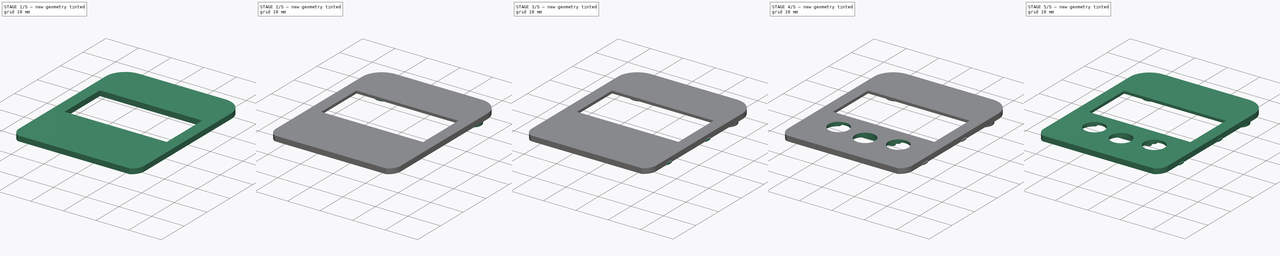
[diagram: build sequence overview — one tinted view per stage of 5, left to right]
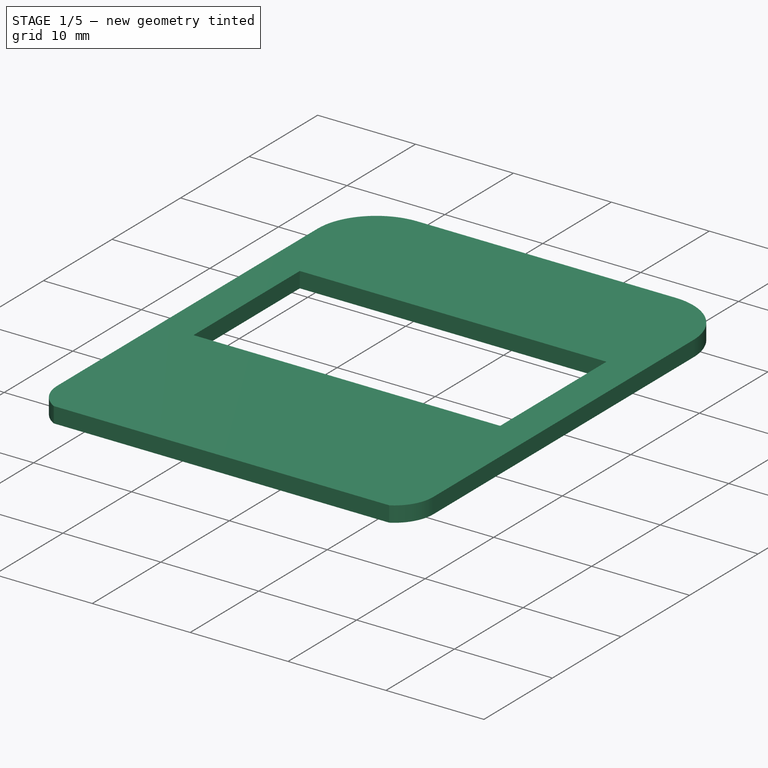
[diagram: stage 1 of 5 — iso view after this stage's code; geometry added in this stage tinted green]
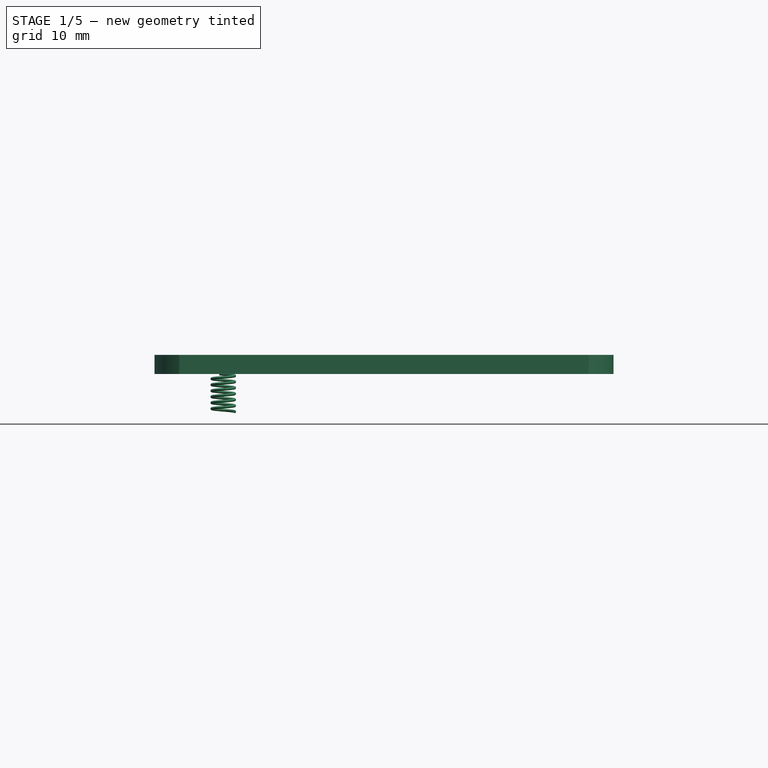
[diagram: stage 1 of 5 — front view after this stage's code; geometry added in this stage tinted green]
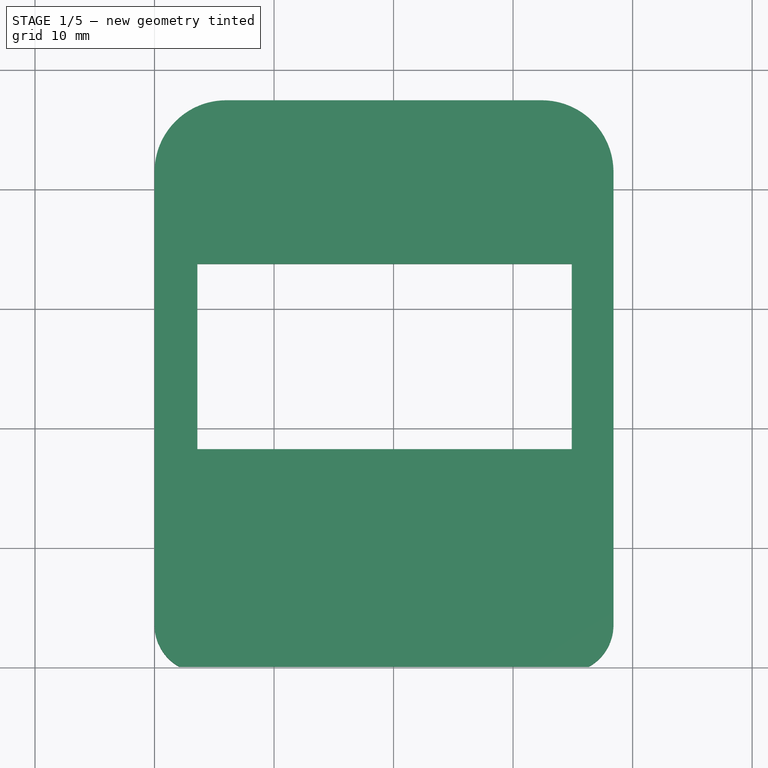
[diagram: stage 1 of 5 — top view after this stage's code; geometry added in this stage tinted green]
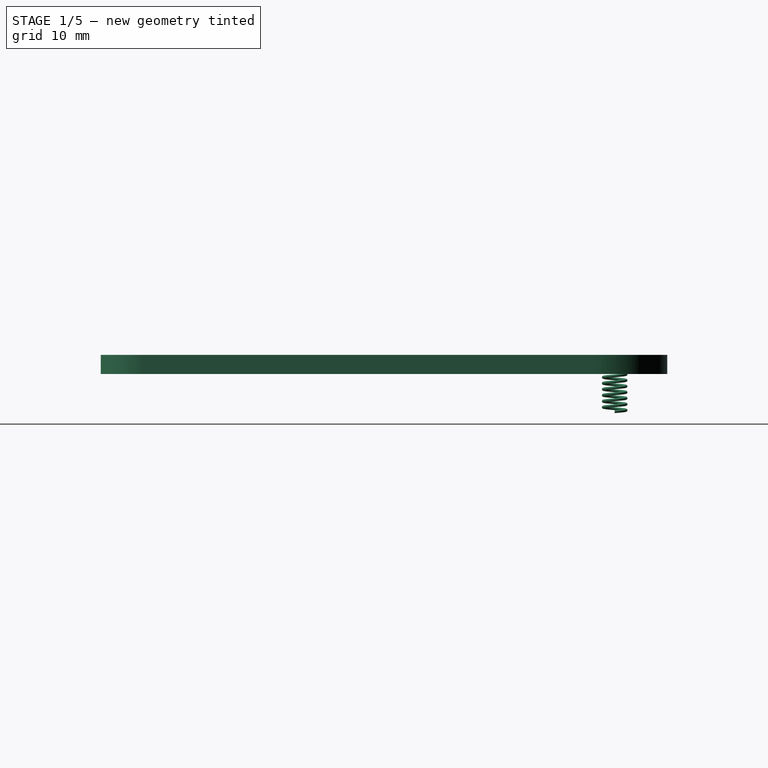
[diagram: stage 1 of 5 — right view after this stage's code; geometry added in this stage tinted green]
FCSTD DOCUMENT  (FreeCAD 0.18R0.18.4)
Label: Top_case
Comment: CERN Open Hardware Licence Version 2 - Weakly Reciprocal
License: Other
LicenseURL: https://ohwr.org/cern_ohl_w_v2.pdf
objects: Sketcher::SketchObject×9, PartDesign::Pad×5, PartDesign::Pocket×4, PartDesign::Fillet×2, Part::Helix×2, Part::Circle×2, Part::Sweep×2, Part::Cut×2, PartDesign::Body×1
note: 38 computed .brp shape members not serialized (recipe doc carries the construction recipe); baked Part::Feature solids carry a one-line shape summary decoded from their .brp

FEATURE [Sketcher::SketchObject] Sketch
  MapMode = 5
  Support = -> [XY_Plane]
  sketch-geometry (8):
    g0: LineSegment StartX=38.3998 StartY=3.50065 StartZ=0 EndX=38.3998 EndY=41.4 EndZ=0
    g1: LineSegment StartX=32.3998 StartY=47.4 StartZ=0 EndX=5.99984 EndY=47.4 EndZ=0
    g2: LineSegment StartX=-0.000157822 StartY=41.4 StartZ=0 EndX=-0.000157822 EndY=3.501 EndZ=0
    g3: ArcOfCircle CenterX=5.99984 CenterY=41.4 CenterZ=0 NormalX=0 NormalY=0 NormalZ=1 AngleXU=0 Radius=6 StartAngle=1.5708 EndAngle=3.14159
    g4: ArcOfCircle CenterX=32.3998 CenterY=41.4 CenterZ=0 NormalX=0 NormalY=0 NormalZ=1 AngleXU=0 Radius=6 StartAngle=4e-16 EndAngle=1.5708
    g5: ArcOfCircle CenterX=34.3998 CenterY=3.50065 CenterZ=0 NormalX=0 NormalY=0 NormalZ=1 AngleXU=0 Radius=4 StartAngle=5.21741 EndAngle=6.28319
    g6: ArcOfCircle CenterX=3.99984 CenterY=3.501 CenterZ=0 NormalX=0 NormalY=0 NormalZ=1 AngleXU=0 Radius=4 StartAngle=3.14159 EndAngle=4.20755
    g7: LineSegment StartX=2.06516 StartY=0 StartZ=0 EndX=36.3352 EndY=0 EndZ=0
  constraints (22):
    c: Horizontal(g1)
    c: Vertical(g0)
    c: Vertical(g2)
    c: Tangent(g2,g3) = -1.5708
    c: Tangent(g1,g3) = -1.5708
    c: Tangent(g1,g4) = -1.5708
    c: Tangent(g0,g4) = -1.5708
    c: Tangent(g0,g5) = -1.5708
    c: Tangent(g2,g6) = -1.5708
    c: DistanceX(g2,g0) = 38.4
    c: Radius(g6) = 4
    c: Radius(g5) = 4
    c: Radius(g3) = 6
    c: Radius(g4) = 6
    c: Horizontal(g7)
    c: Coincident(g7,g6)
    c: Coincident(g7,g5)
    c: DistanceY(g6,g1) = 47.4
    c: Distance(g7) = 34.27
    c: Distance(g2) = 37.899
    c: DistanceX(g6) = 2.06516
    c: DistanceY(g6) = 0
FEATURE [PartDesign::Pad] Pad
  Length = 1.6
  Length2 = 100
  Profile = -> Sketch
  Type = 0
FEATURE [Sketcher::SketchObject] Sketch001
  ExternalGeometry = -> [Pad]
  MapMode = 5
  Placement = pos=(0,0,1.6) rot=(0,0,1;0rad)
  Support = -> [Pad]
  sketch-geometry (4):
    g0: LineSegment StartX=3.58984 StartY=33.71 StartZ=0 EndX=34.9098 EndY=33.71 EndZ=0
    g1: LineSegment StartX=34.9098 StartY=33.71 StartZ=0 EndX=34.9098 EndY=18.21 EndZ=0
    g2: LineSegment StartX=34.9098 StartY=18.21 StartZ=0 EndX=3.58984 EndY=18.21 EndZ=0
    g3: LineSegment StartX=3.58984 StartY=18.21 StartZ=0 EndX=3.58984 EndY=33.71 EndZ=0
  constraints (12):
    c: Coincident(g0,g1)
    c: Coincident(g1,g2)
    c: Coincident(g2,g3)
    c: Coincident(g3,g0)
    c: Horizontal(g0)
    c: Horizontal(g2)
    c: Vertical(g1)
    c: Vertical(g3)
    c: DistanceX(g0,g0) = 31.32
    c: DistanceY(g3,g3) = 15.5
    c: DistanceY(g0,g-3) = 13.69
    c: DistanceX(g-4,g0) = 3.59
FEATURE [PartDesign::Pocket] Pocket
  BaseFeature = -> Pad
  Length = 5
  Length2 = 100
  Profile = -> Sketch001
  Type = 1
FEATURE [PartDesign::Body] Body
  Group = -> [Sketch,Pad,Sketch001,Pocket,Sketch002,Pocket001,Sketch003,Pad001,Sketch004,Pad002,Fillet,Sketch005,Pad003,Fillet001,Sketch006,Pocket002,Sketch007,Pocket003,Sketch008,Pad004]
  Origin = -> Origin
  Tip = -> Pad004
FEATURE [Part::Helix] Helix  label="Спираль"
  Angle = 0
  AttacherType = Attacher::AttachEngine3D
  Height = 3.15
  LocalCoord = 0
  Pitch = 0.5
  Placement = pos=(5.75,43,-3.15) rot=(0,0,1;0rad)
  Radius = 0.95
  Style = 1
FEATURE [Part::Helix] Helix001  label="Спираль001"
  Angle = 0
  AttacherType = Attacher::AttachEngine3D
  Height = 3.15
  LocalCoord = 0
  Pitch = 0.5
  Placement = pos=(32.65,43,-3.15) rot=(0,0,1;0rad)
  Radius = 0.95
  Style = 1
FEATURE [Part::Circle] Circle  label="Окружность"
  Angle0 = 0
  Angle1 = 360
  AttacherType = Attacher::AttachEngine3D
  Placement = pos=(6.7,43,-3.15) rot=(1,0,0;1.5708rad)
  Radius = 0.12
FEATURE [Part::Circle] Circle001  label="Окружность001"
  Angle0 = 0
  Angle1 = 360
  AttacherType = Attacher::AttachEngine3D
  Placement = pos=(33.6,43,-3.15) rot=(1,0,0;1.5708rad)
  Radius = 0.12
FEATURE [Part::Sweep] Sweep
  Frenet = false
  Sections = -> [Circle]
  Solid = true
  Spine = -> Helix
  Transition = 1
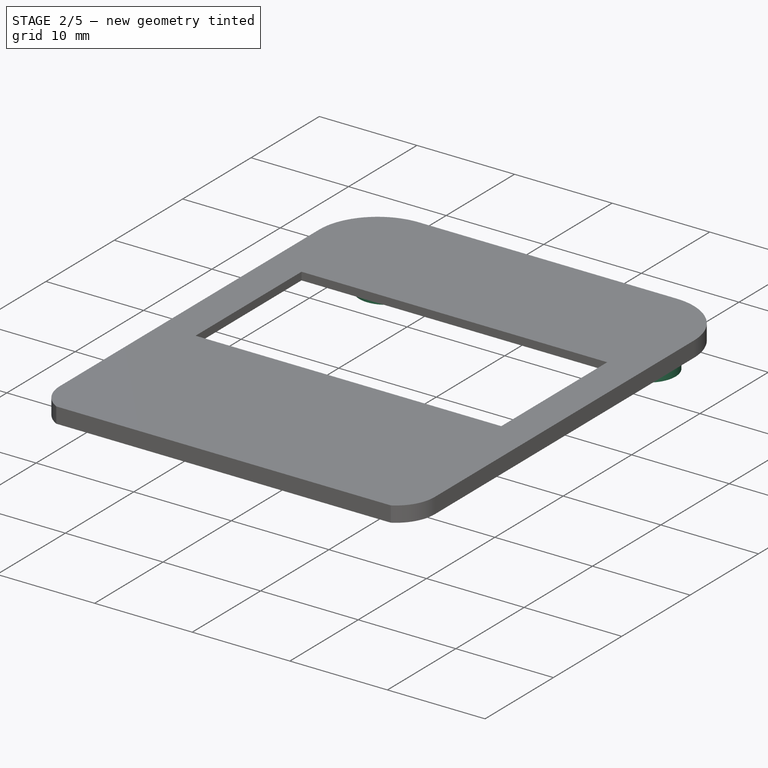
[diagram: stage 2 of 5 — iso view after this stage's code; geometry added in this stage tinted green]
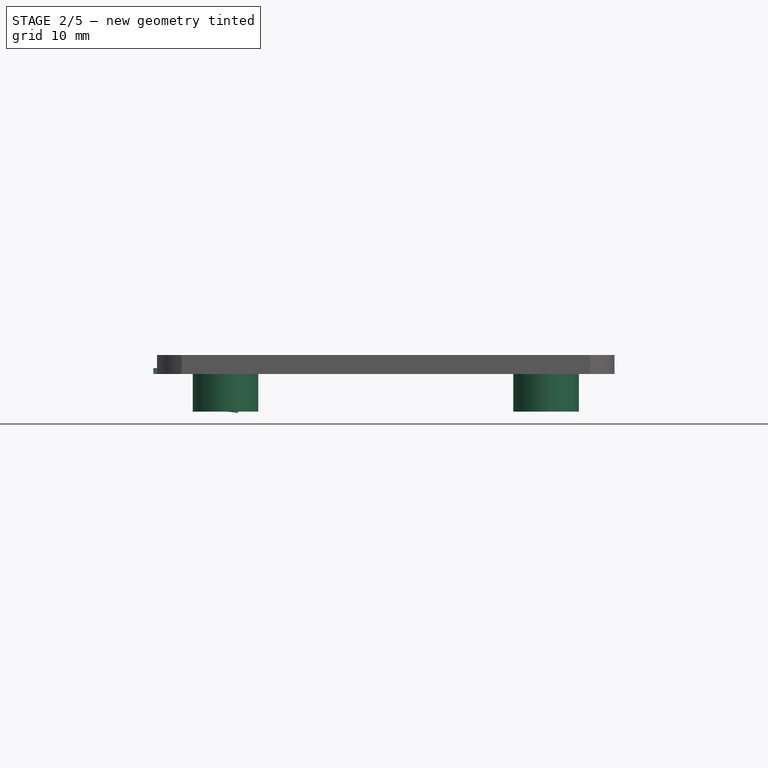
[diagram: stage 2 of 5 — front view after this stage's code; geometry added in this stage tinted green]
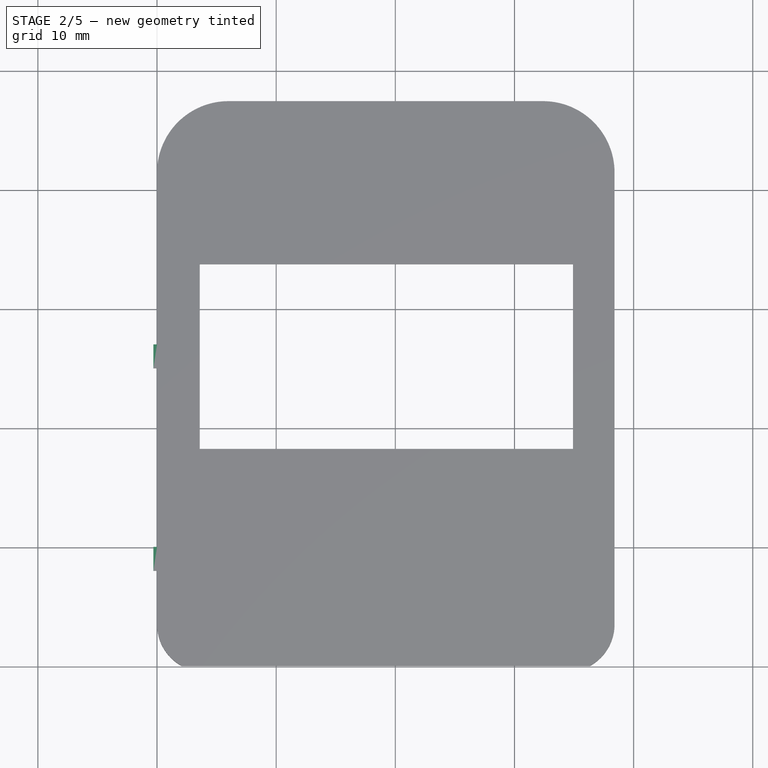
[diagram: stage 2 of 5 — top view after this stage's code; geometry added in this stage tinted green]
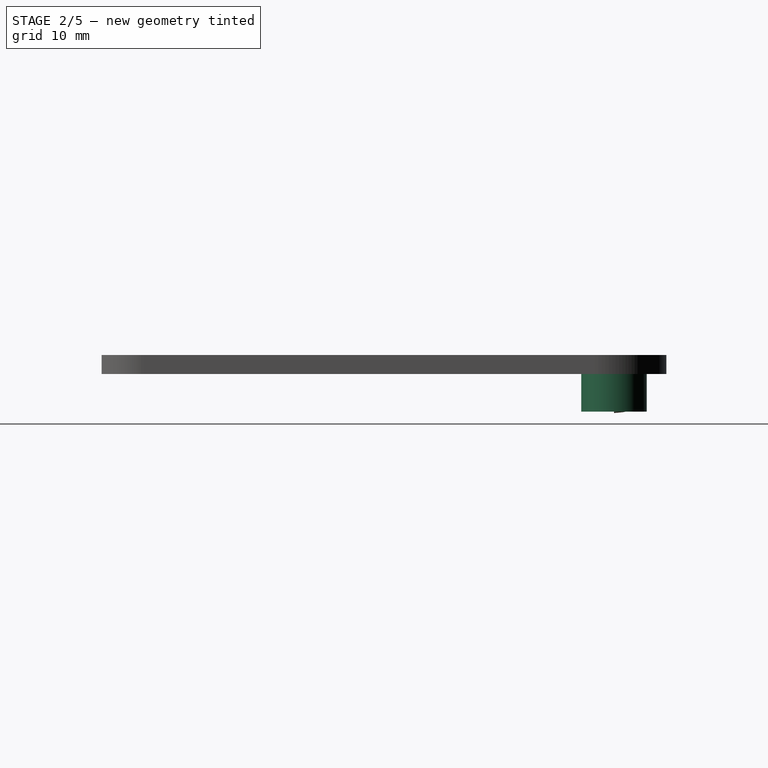
[diagram: stage 2 of 5 — right view after this stage's code; geometry added in this stage tinted green]
FEATURE [Sketcher::SketchObject] Sketch002
  ExternalGeometry = -> [Pocket]
  MapMode = 5
  Placement = pos=(0,0,0) rot=(1,0,0;3.14159rad)
  Support = -> [Pocket]
  sketch-geometry (4):
    g0: LineSegment StartX=36.6998 StartY=-39.95 StartZ=0 EndX=1.69984 EndY=-39.95 EndZ=0
    g1: LineSegment StartX=1.69984 StartY=-39.95 StartZ=0 EndX=1.69984 EndY=-15.95 EndZ=0
    g2: LineSegment StartX=1.69984 StartY=-15.95 StartZ=0 EndX=36.6998 EndY=-15.95 EndZ=0
    g3: LineSegment StartX=36.6998 StartY=-15.95 StartZ=0 EndX=36.6998 EndY=-39.95 EndZ=0
  constraints (12):
    c: Coincident(g0,g1)
    c: Coincident(g1,g2)
    c: Coincident(g2,g3)
    c: Coincident(g3,g0)
    c: Horizontal(g0)
    c: Horizontal(g2)
    c: Vertical(g1)
    c: Vertical(g3)
    c: DistanceX(g0,g0) = 35
    c: DistanceY(g3,g3) = 24
    c: DistanceY(g-3,g0) = 7.45
    c: DistanceX(g0,g-4) = 1.7
FEATURE [PartDesign::Pocket] Pocket001
  BaseFeature = -> Pocket
  Length = 0.8
  Length2 = 100
  Profile = -> Sketch002
  Type = 0
FEATURE [Sketcher::SketchObject] Sketch003
  ExternalGeometry = -> [Pocket001]
  MapMode = 5
  Placement = pos=(0,0,0) rot=(1,0,0;3.14159rad)
  Support = -> [Pocket001]
  sketch-geometry (4):
    g0: Circle CenterX=32.6498 CenterY=-43 CenterZ=0 NormalX=0 NormalY=0 NormalZ=1 AngleXU=0 Radius=0.95
    g1: Circle CenterX=32.6498 CenterY=-43 CenterZ=0 NormalX=0 NormalY=0 NormalZ=1 AngleXU=0 Radius=2.75
    g2: Circle CenterX=5.74984 CenterY=-43 CenterZ=0 NormalX=0 NormalY=0 NormalZ=1 AngleXU=0 Radius=0.95
    g3: Circle CenterX=5.74984 CenterY=-43 CenterZ=0 NormalX=0 NormalY=0 NormalZ=1 AngleXU=0 Radius=2.75
  constraints (10):
    c: Coincident(g1,g0)
    c: Diameter(g0) = 1.9
    c: Diameter(g1) = 5.5
    c: Coincident(g3,g2)
    c: Diameter(g2) = 1.9
    c: Diameter(g3) = 5.5
    c: DistanceX(g0,g-4) = 5.75
    c: DistanceX(g-5,g2) = 5.75
    c: DistanceY(g-3,g0) = 4.4
    c: DistanceY(g-3,g2) = 4.4
FEATURE [PartDesign::Pad] Pad001  label="Pad_screw"
  BaseFeature = -> Pocket001
  Length = 3.15
  Length2 = 100
  Profile = -> Sketch003
  Type = 0
FEATURE [Sketcher::SketchObject] Sketch004
  ExternalGeometry = -> [Pad001]
  MapMode = 5
  Placement = pos=(-0.000157822,0,0) rot=(0.57735,-0.57735,-0.57735;2.0944rad)
  Support = -> [Pad001]
  sketch-geometry (8):
    g0: LineSegment StartX=-27.001 StartY=0 StartZ=0 EndX=-25.001 EndY=0 EndZ=0
    g1: LineSegment StartX=-25.001 StartY=0 StartZ=0 EndX=-25.001 EndY=0.5 EndZ=0
    g2: LineSegment StartX=-25.001 StartY=0.5 StartZ=0 EndX=-27.001 EndY=0.5 EndZ=0
    g3: LineSegment StartX=-27.001 StartY=0.5 StartZ=0 EndX=-27.001 EndY=0 EndZ=0
    g4: LineSegment StartX=-10.001 StartY=0 StartZ=0 EndX=-8.001 EndY=0 EndZ=0
    g5: LineSegment StartX=-8.001 StartY=0 StartZ=0 EndX=-8.001 EndY=0.5 EndZ=0
    g6: LineSegment StartX=-8.001 StartY=0.5 StartZ=0 EndX=-10.001 EndY=0.5 EndZ=0
    g7: LineSegment StartX=-10.001 StartY=0.5 StartZ=0 EndX=-10.001 EndY=0 EndZ=0
  constraints (24):
    c: Coincident(g0,g1)
    c: Coincident(g1,g2)
    c: Coincident(g2,g3)
    c: Coincident(g3,g0)
    c: Horizontal(g0)
    c: Horizontal(g2)
    c: Vertical(g1)
    c: Vertical(g3)
    c: PointOnObject(g0,g-3)
    c: Coincident(g4,g5)
    c: Coincident(g5,g6)
    c: Coincident(g6,g7)
    c: Coincident(g7,g4)
    c: Horizontal(g4)
    c: Horizontal(g6)
    c: Vertical(g5)
    c: Vertical(g7)
    c: PointOnObject(g4,g-3)
    c: DistanceX(g0,g4) = 15
    c: DistanceX(g6,g6) = 2
    c: DistanceX(g2,g2) = 2
    c: DistanceX(g4,g-4) = 4.5
    c: DistanceY(g3,g3) = 0.5
    c: DistanceY(g7,g7) = 0.5
FEATURE [PartDesign::Pad] Pad002
  BaseFeature = -> Pad001
  Length = 0.3
  Length2 = 100
  Profile = -> Sketch004
  Type = 0
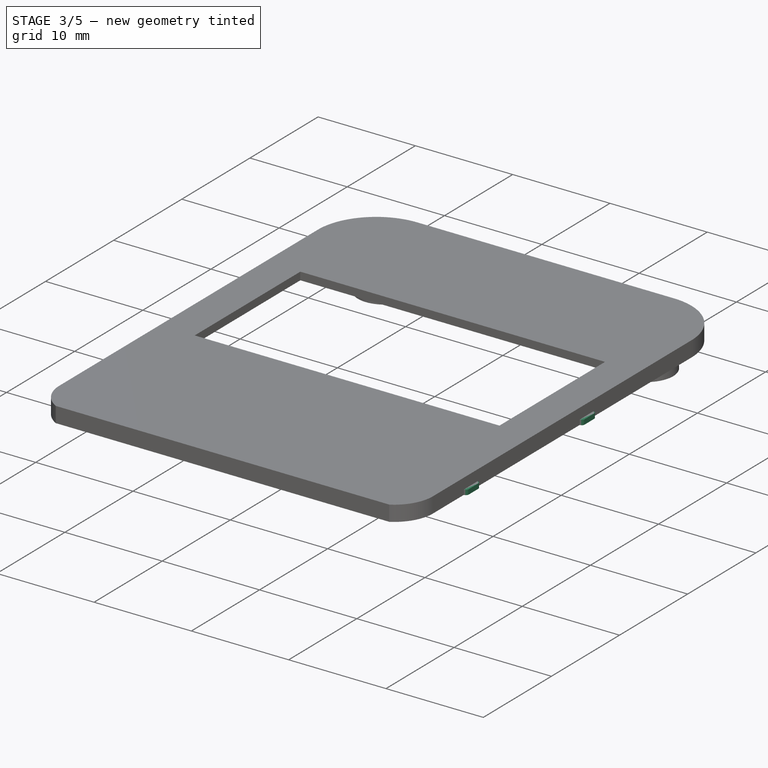
[diagram: stage 3 of 5 — iso view after this stage's code; geometry added in this stage tinted green]
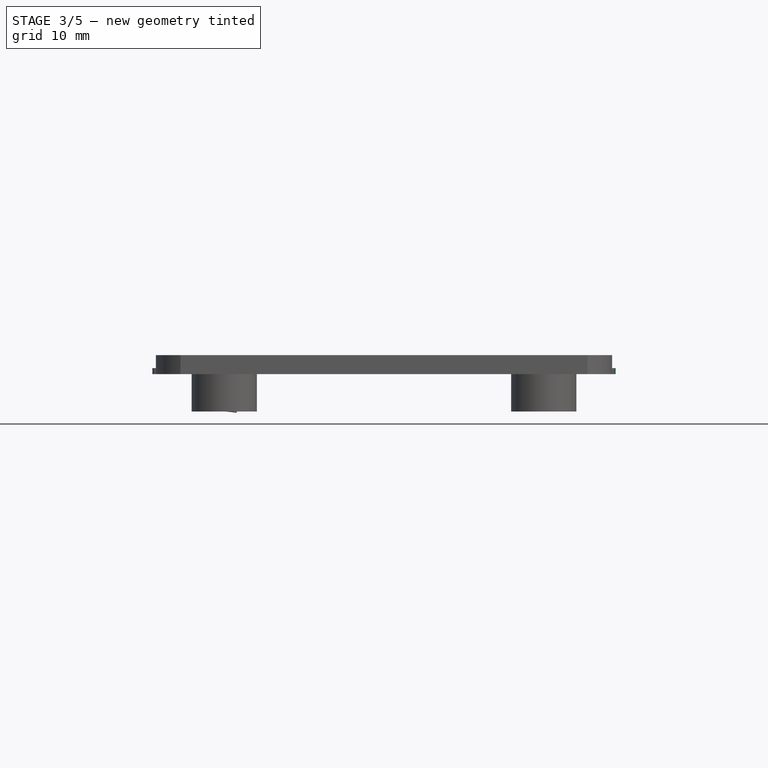
[diagram: stage 3 of 5 — front view after this stage's code; geometry added in this stage tinted green]
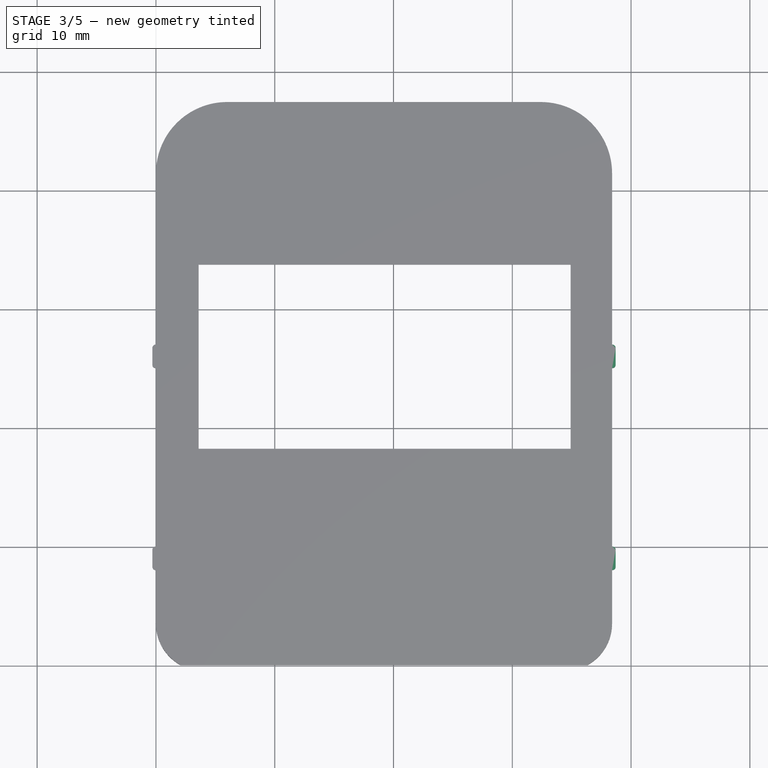
[diagram: stage 3 of 5 — top view after this stage's code; geometry added in this stage tinted green]
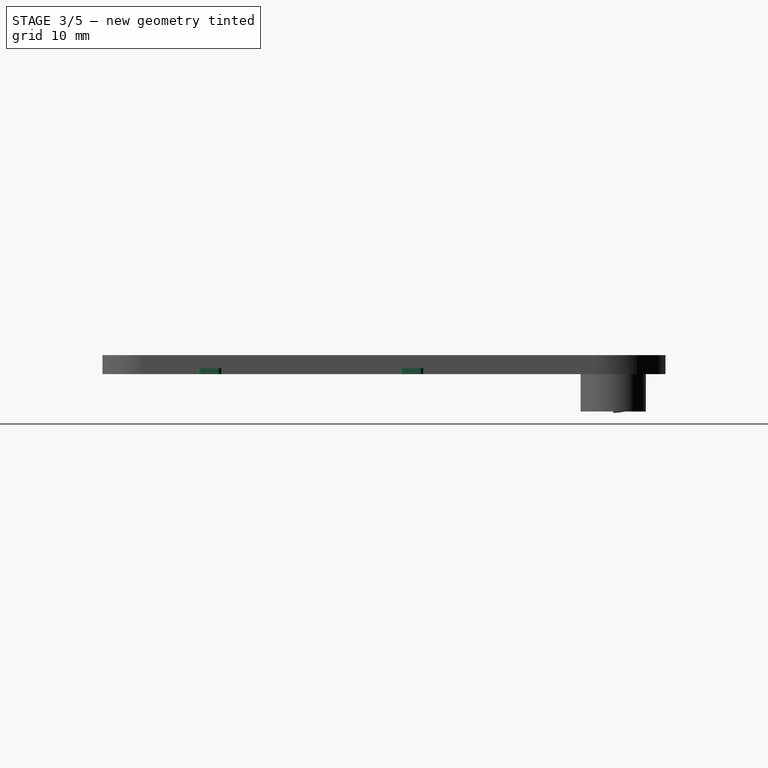
[diagram: stage 3 of 5 — right view after this stage's code; geometry added in this stage tinted green]
FEATURE [PartDesign::Fillet] Fillet
  Base = -> Pad002 [Edge75,Edge72,Edge80,Edge77]
  BaseFeature = -> Pad002
  Radius = 0.29
FEATURE [Sketcher::SketchObject] Sketch005
  ExternalGeometry = -> [Fillet]
  MapMode = 5
  Placement = pos=(38.3998,0,0) rot=(0.57735,0.57735,0.57735;2.0944rad)
  Support = -> [Fillet]
  sketch-geometry (8):
    g0: LineSegment StartX=8.00065 StartY=0 StartZ=0 EndX=10.0006 EndY=0 EndZ=0
    g1: LineSegment StartX=10.0006 StartY=0 StartZ=0 EndX=10.0006 EndY=0.5 EndZ=0
    g2: LineSegment StartX=10.0006 StartY=0.5 StartZ=0 EndX=8.00065 EndY=0.5 EndZ=0
    g3: LineSegment StartX=8.00065 StartY=0.5 StartZ=0 EndX=8.00065 EndY=0 EndZ=0
    g4: LineSegment StartX=25.0006 StartY=0 StartZ=0 EndX=27.0006 EndY=0 EndZ=0
    g5: LineSegment StartX=27.0006 StartY=0 StartZ=0 EndX=27.0006 EndY=0.5 EndZ=0
    g6: LineSegment StartX=27.0006 StartY=0.5 StartZ=0 EndX=25.0006 EndY=0.5 EndZ=0
    g7: LineSegment StartX=25.0006 StartY=0.5 StartZ=0 EndX=25.0006 EndY=0 EndZ=0
  constraints (24):
    c: Coincident(g0,g1)
    c: Coincident(g1,g2)
    c: Coincident(g2,g3)
    c: Coincident(g3,g0)
    c: Horizontal(g0)
    c: Horizontal(g2)
    c: Vertical(g1)
    c: Vertical(g3)
    c: PointOnObject(g0,g-4)
    c: Coincident(g4,g5)
    c: Coincident(g5,g6)
    c: Coincident(g6,g7)
    c: Coincident(g7,g4)
    c: Horizontal(g4)
    c: Horizontal(g6)
    c: Vertical(g5)
    c: Vertical(g7)
    c: PointOnObject(g4,g-4)
    c: DistanceX(g2,g2) = 2
    c: DistanceX(g6,g6) = 2
    c: DistanceY(g3,g3) = 0.5
    c: DistanceY(g7,g7) = 0.5
    c: DistanceX(g-4,g0) = 4.5
    c: DistanceX(g0,g4) = 15
FEATURE [PartDesign::Pad] Pad003
  BaseFeature = -> Fillet
  Length = 0.3
  Length2 = 100
  Profile = -> Sketch005
  Type = 0
FEATURE [PartDesign::Fillet] Fillet001
  Base = -> Pad003 [Edge100,Edge103,Edge105,Edge108]
  BaseFeature = -> Pad003
  Radius = 0.29
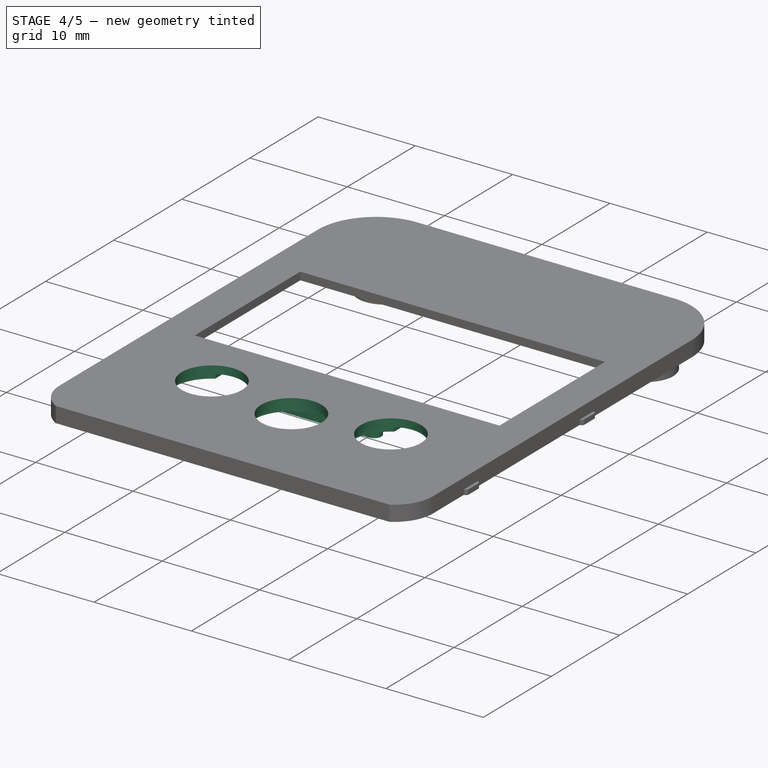
[diagram: stage 4 of 5 — iso view after this stage's code; geometry added in this stage tinted green]
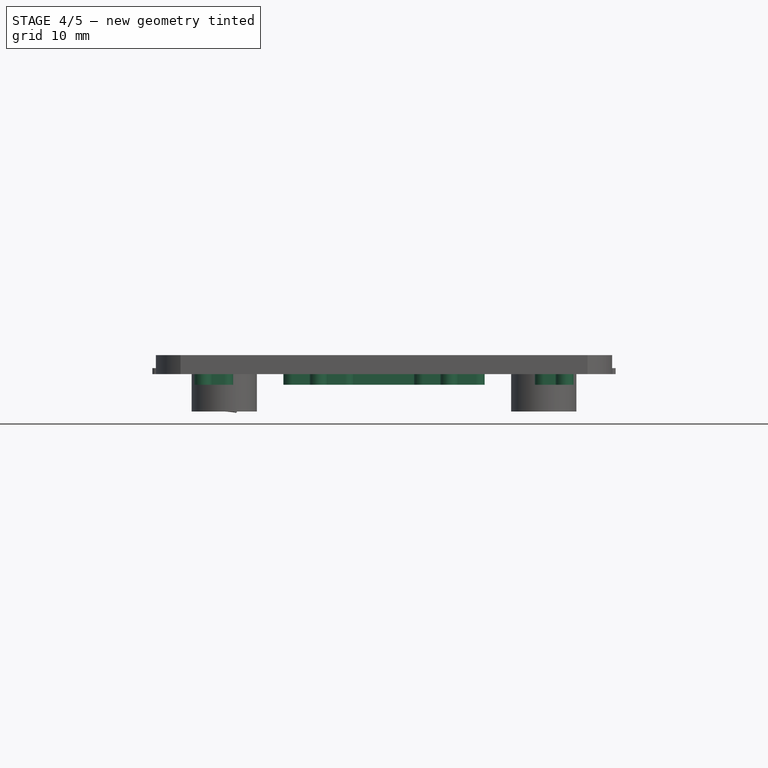
[diagram: stage 4 of 5 — front view after this stage's code; geometry added in this stage tinted green]
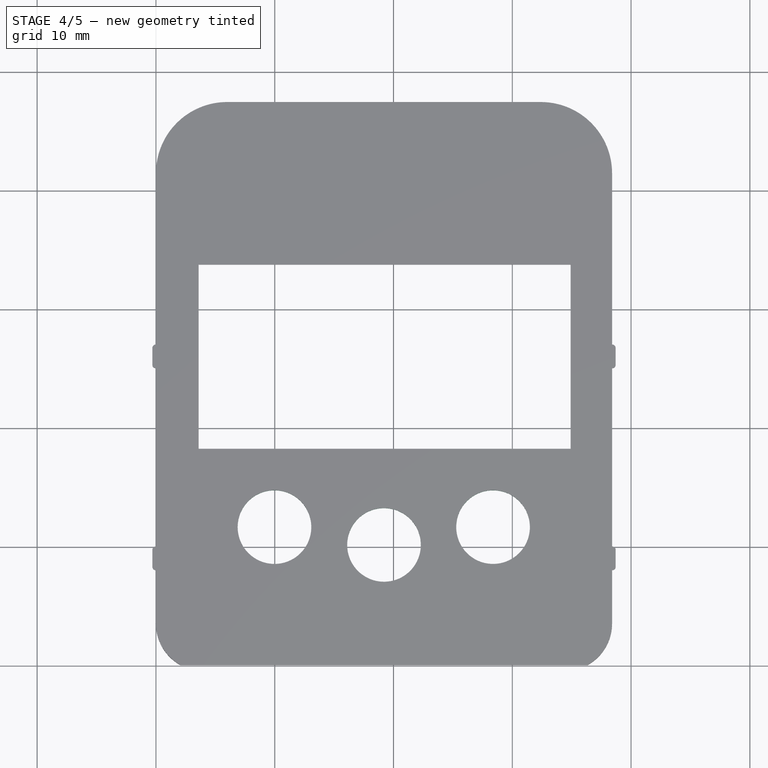
[diagram: stage 4 of 5 — top view after this stage's code; geometry added in this stage tinted green]
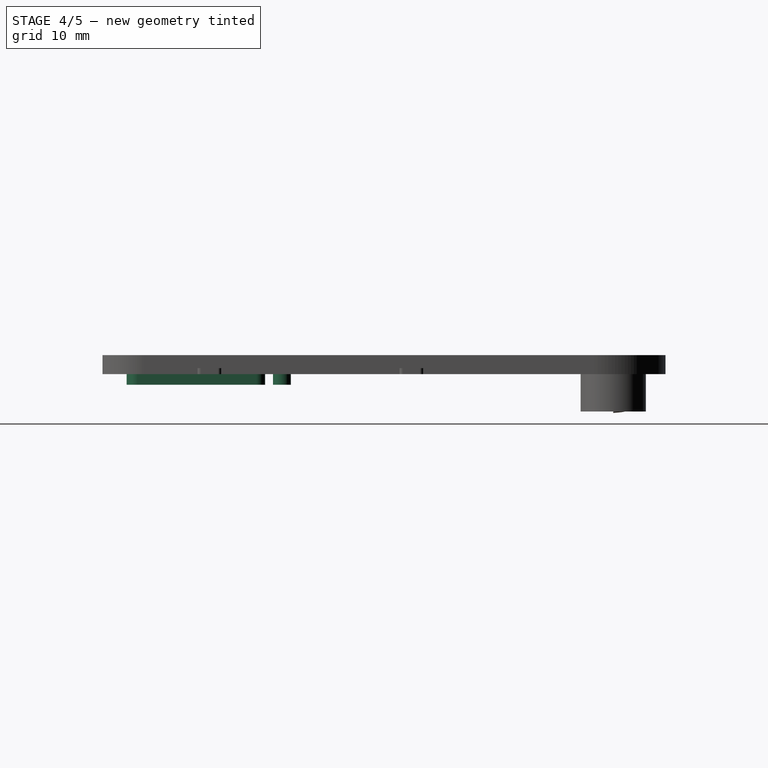
[diagram: stage 4 of 5 — right view after this stage's code; geometry added in this stage tinted green]
FEATURE [Sketcher::SketchObject] Sketch006
  ExternalGeometry = -> [Fillet001]
  MapMode = 5
  Placement = pos=(0,0,1.6) rot=(0,0,1;0rad)
  Support = -> [Fillet001]
  sketch-geometry (3):
    g0: Circle CenterX=19.1998 CenterY=10.11 CenterZ=0 NormalX=0 NormalY=0 NormalZ=1 AngleXU=0 Radius=3.1
    g1: Circle CenterX=28.3798 CenterY=11.61 CenterZ=0 NormalX=0 NormalY=0 NormalZ=1 AngleXU=0 Radius=3.1
    g2: Circle CenterX=9.97984 CenterY=11.61 CenterZ=0 NormalX=0 NormalY=0 NormalZ=1 AngleXU=0 Radius=3.1
  constraints (9):
    c: Diameter(g0) = 6.2
    c: Diameter(g2) = 6.2
    c: Diameter(g1) = 6.2
    c: DistanceY(g-3,g0) = 10.11
    c: DistanceY(g-3,g2) = 11.61
    c: DistanceY(g-3,g1) = 11.61
    c: Distance(g2,g-4) = 9.98
    c: Distance(g1,g-5) = 10.02
    c: Distance(g0,g-4) = 19.2
FEATURE [PartDesign::Pocket] Pocket002
  BaseFeature = -> Fillet001
  Length = 5
  Length2 = 100
  Profile = -> Sketch006
  Type = 1
FEATURE [Sketcher::SketchObject] Sketch007
  ExternalGeometry = -> [Pocket002]
  MapMode = 5
  Placement = pos=(0,0,0) rot=(1,0,0;3.14159rad)
  Support = -> [Pocket002]
  sketch-geometry (11):
    g0: Circle CenterX=19.1998 CenterY=-10.11 CenterZ=0 NormalX=0 NormalY=0 NormalZ=1 AngleXU=0 Radius=3.9
    g1: ArcOfCircle CenterX=28.3798 CenterY=-11.61 CenterZ=0 NormalX=0 NormalY=0 NormalZ=1 AngleXU=0 Radius=3.9 StartAngle=5.2509 EndAngle=10.4572
    g2: ArcOfCircle CenterX=9.97984 CenterY=-11.61 CenterZ=0 NormalX=0 NormalY=0 NormalZ=1 AngleXU=0 Radius=3.9 StartAngle=5.2509 EndAngle=10.4572
    g3: LineSegment [constr] StartX=9.97984 StartY=-11.61 StartZ=0 EndX=9.97984 EndY=-16.01 EndZ=0
    g4: LineSegment [constr] StartX=28.3798 StartY=-11.61 StartZ=0 EndX=28.3798 EndY=-16.01 EndZ=0
    g5: LineSegment StartX=7.98 StartY=-14.9582 StartZ=0 EndX=7.98 EndY=-15.95 EndZ=0
    g6: LineSegment StartX=11.98 StartY=-14.958 StartZ=0 EndX=11.98 EndY=-15.95 EndZ=0
    g7: LineSegment StartX=26.38 StartY=-14.9582 StartZ=0 EndX=26.38 EndY=-15.95 EndZ=0
    g8: LineSegment StartX=30.38 StartY=-14.958 StartZ=0 EndX=30.38 EndY=-15.95 EndZ=0
    g9: LineSegment StartX=26.38 StartY=-15.95 StartZ=0 EndX=30.38 EndY=-15.95 EndZ=0
    g10: LineSegment StartX=7.98 StartY=-15.95 StartZ=0 EndX=11.98 EndY=-15.95 EndZ=0
  constraints (22):
    c: Coincident(g0,g-4)
    c: Diameter(g0) = 7.8
    c: Coincident(g1,g-3)
    c: Coincident(g2,g-5)
    c: Diameter(g2) = 7.8
    c: Diameter(g1) = 7.8
    c: Coincident(g3,g2)
    c: Vertical(g3)
    c: Coincident(g4,g1)
    c: Vertical(g4)
    c: Vertical(g5)
    c: Vertical(g6)
    c: Vertical(g7)
    c: Vertical(g8)
    c: Coincident(g1,g7)
    c: Coincident(g1,g8)
    c: Coincident(g9,g7)
    c: Coincident(g9,g8)
    c: Coincident(g5,g2)
    c: Coincident(g6,g2)
    c: Coincident(g10,g6)
    c: Coincident(g10,g5)
FEATURE [PartDesign::Pocket] Pocket003
  BaseFeature = -> Pocket002
  Length = 0.8
  Length2 = 100
  Profile = -> Sketch007
  Type = 0
FEATURE [Sketcher::SketchObject] Sketch008
  ExternalGeometry = -> [Pocket003]
  MapMode = 5
  Placement = pos=(0,0,0) rot=(1,0,0;3.14159rad)
  Support = -> [Pocket003]
  sketch-geometry (45):
    g0: ArcOfCircle CenterX=34.3998 CenterY=-12.94 CenterZ=0 NormalX=0 NormalY=0 NormalZ=1 AngleXU=0 Radius=0.75 StartAngle=3.14159 EndAngle=6.28319
    g1: ArcOfCircle CenterX=34.3998 CenterY=-2.94 CenterZ=0 NormalX=0 NormalY=0 NormalZ=1 AngleXU=0 Radius=0.75 StartAngle=1e-16 EndAngle=3.14159
    g2: LineSegment StartX=35.1498 StartY=-12.94 StartZ=0 EndX=35.1498 EndY=-2.94 EndZ=0
    g3: LineSegment StartX=33.6498 StartY=-12.94 StartZ=0 EndX=33.6498 EndY=-7.14 EndZ=0
    g4: ArcOfCircle CenterX=24.1998 CenterY=-15.11 CenterZ=0 NormalX=0 NormalY=0 NormalZ=1 AngleXU=0 Radius=0.75 StartAngle=4.71239 EndAngle=7.85398
    g5: ArcOfCircle CenterX=14.1998 CenterY=-15.11 CenterZ=0 NormalX=0 NormalY=0 NormalZ=1 AngleXU=0 Radius=0.75 StartAngle=1.5708 EndAngle=4.71239
    g6: LineSegment StartX=24.1998 StartY=-14.36 StartZ=0 EndX=14.1998 EndY=-14.36 EndZ=0
    g7: LineSegment StartX=24.1998 StartY=-15.86 StartZ=0 EndX=14.1998 EndY=-15.86 EndZ=0
    g8: LineSegment StartX=33.6498 StartY=-5.64 StartZ=0 EndX=32.65 EndY=-5.64 EndZ=0
    g9: LineSegment StartX=33.6498 StartY=-7.14 StartZ=0 EndX=32.65 EndY=-7.14 EndZ=0
    g10: ArcOfCircle CenterX=32.65 CenterY=-6.39 CenterZ=0 NormalX=0 NormalY=0 NormalZ=1 AngleXU=0 Radius=0.75 StartAngle=1.5708 EndAngle=4.71239
    g11: LineSegment StartX=33.6498 StartY=-5.64 StartZ=0 EndX=33.6498 EndY=-2.94 EndZ=0
    g12: LineSegment [constr] StartX=19.1998 StartY=-10.11 StartZ=0 EndX=19.1998 EndY=-4.55447 EndZ=0
    g13: ArcOfCircle CenterX=4 CenterY=-12.94 CenterZ=0 NormalX=0 NormalY=0 NormalZ=1 AngleXU=0 Radius=0.75 StartAngle=3.14159 EndAngle=6.28319
    g14: LineSegment StartX=3.25 StartY=-12.94 StartZ=0 EndX=3.25 EndY=-2.94 EndZ=0
    g15: LineSegment StartX=4.75 StartY=-12.94 StartZ=0 EndX=4.75 EndY=-7.14 EndZ=0
    g16: LineSegment StartX=4.75 StartY=-7.14 StartZ=0 EndX=5.75 EndY=-7.14 EndZ=0
    g17: ArcOfCircle CenterX=5.75 CenterY=-6.39 CenterZ=0 NormalX=0 NormalY=0 NormalZ=1 AngleXU=0 Radius=0.75 StartAngle=4.71239 EndAngle=7.85398
    g18: LineSegment StartX=4.75 StartY=-5.64 StartZ=0 EndX=5.75 EndY=-5.64 EndZ=0
    g19: LineSegment StartX=4.75 StartY=-5.64 StartZ=0 EndX=4.75 EndY=-2.94 EndZ=0
    g20: ArcOfCircle CenterX=4 CenterY=-2.94 CenterZ=0 NormalX=0 NormalY=0 NormalZ=1 AngleXU=0 Radius=0.75 StartAngle=-1.52065e-11 EndAngle=3.14159
    g21: ArcOfCircle CenterX=26.9198 CenterY=-5 CenterZ=0 NormalX=0 NormalY=0 NormalZ=1 AngleXU=0 Radius=0.75 StartAngle=4.71239 EndAngle=7.85398
    g22: ArcOfCircle CenterX=22.4798 CenterY=-5 CenterZ=0 NormalX=0 NormalY=0 NormalZ=1 AngleXU=0 Radius=0.75 StartAngle=1.5708 EndAngle=4.71239
    g23: LineSegment StartX=26.9198 StartY=-4.25 StartZ=0 EndX=25.4498 EndY=-4.25 EndZ=0
    g24: LineSegment StartX=26.9198 StartY=-5.75 StartZ=0 EndX=25.4498 EndY=-5.75 EndZ=0
    g25: ArcOfCircle CenterX=24.6998 CenterY=-7.22 CenterZ=0 NormalX=0 NormalY=0 NormalZ=1 AngleXU=0 Radius=0.75 StartAngle=3.14159 EndAngle=6.28319
    g26: ArcOfCircle CenterX=24.6998 CenterY=-2.78 CenterZ=0 NormalX=0 NormalY=0 NormalZ=1 AngleXU=0 Radius=0.75 StartAngle=0 EndAngle=3.14159
    g27: LineSegment StartX=25.4498 StartY=-7.22 StartZ=0 EndX=25.4498 EndY=-5.75 EndZ=0
    g28: LineSegment StartX=23.9498 StartY=-7.22 StartZ=0 EndX=23.9498 EndY=-5.75 EndZ=0
    g29: LineSegment StartX=23.9498 StartY=-5.75 StartZ=0 EndX=22.4798 EndY=-5.75 EndZ=0
    g30: LineSegment StartX=25.4498 StartY=-4.25 StartZ=0 EndX=25.4498 EndY=-2.78 EndZ=0
    g31: LineSegment StartX=23.9498 StartY=-4.25 StartZ=0 EndX=22.4798 EndY=-4.25 EndZ=0
    g32: LineSegment StartX=23.9498 StartY=-4.25 StartZ=0 EndX=23.9498 EndY=-2.78 EndZ=0
    g33: ArcOfCircle CenterX=11.48 CenterY=-5 CenterZ=0 NormalX=0 NormalY=0 NormalZ=1 AngleXU=0 Radius=0.75 StartAngle=1.5708 EndAngle=4.71239
    g34: ArcOfCircle CenterX=15.92 CenterY=-5 CenterZ=0 NormalX=0 NormalY=0 NormalZ=1 AngleXU=0 Radius=0.75 StartAngle=4.71239 EndAngle=7.85398
    g35: LineSegment StartX=11.48 StartY=-4.25 StartZ=0 EndX=12.95 EndY=-4.25 EndZ=0
    g36: LineSegment StartX=11.48 StartY=-5.75 StartZ=0 EndX=12.95 EndY=-5.75 EndZ=0
    g37: ArcOfCircle CenterX=13.7 CenterY=-7.22 CenterZ=0 NormalX=0 NormalY=0 NormalZ=1 AngleXU=0 Radius=0.75 StartAngle=3.14159 EndAngle=6.28319
    g38: ArcOfCircle CenterX=13.7 CenterY=-2.78 CenterZ=0 NormalX=0 NormalY=0 NormalZ=1 AngleXU=0 Radius=0.75 StartAngle=-9e-16 EndAngle=3.14159
    g39: LineSegment StartX=12.95 StartY=-7.22 StartZ=0 EndX=12.95 EndY=-5.75 EndZ=0
    g40: LineSegment StartX=14.45 StartY=-7.22 StartZ=0 EndX=14.45 EndY=-5.75 EndZ=0
    g41: LineSegment StartX=14.45 StartY=-5.75 StartZ=0 EndX=15.92 EndY=-5.75 EndZ=0
    g42: LineSegment StartX=12.95 StartY=-4.25 StartZ=0 EndX=12.95 EndY=-2.78 EndZ=0
    g43: LineSegment StartX=14.45 StartY=-4.25 StartZ=0 EndX=15.92 EndY=-4.25 EndZ=0
    g44: LineSegment StartX=14.45 StartY=-4.25 StartZ=0 EndX=14.45 EndY=-2.78 EndZ=0
  constraints (101):
    c: Tangent(g0,g3) = 1.5708
    c: Tangent(g0,g2) = -1.5708
    c: Tangent(g2,g1) = -1.5708
    c: Coincident(g11,g1) = 1.5708
    c: Vertical(g2)
    c: Equal(g0,g1)
    c: Tangent(g4,g7) = 1.5708
    c: Tangent(g4,g6) = -1.5708
    c: Tangent(g6,g5) = -1.5708
    c: Tangent(g7,g5) = 1.5708
    c: Horizontal(g6)
    c: Equal(g4,g5)
    c: Diameter(g4) = 1.5
    c: DistanceX(g5,g4) = 10
    c: DistanceY(g4,g-3) = 5
    c: DistanceX(g-3,g4) = 5
    c: DistanceY(g0,g1) = 10
    c: Diameter(g0) = 1.5
    c: DistanceY(g1,g-4) = 2.94
    c: DistanceX(g1,g-5) = 4
    c: Horizontal(g8)
    c: Horizontal(g9)
    c: Coincident(g10,g9)
    c: Coincident(g10,g8)
    c: Diameter(g10) = 1.5
    c: Distance(g1,g8) = 2.7
    c: Tangent(g10,g8)
    c: Tangent(g10,g9)
    c: Coincident(g3,g9)
    c: Coincident(g11,g8)
    c: Tangent(g3,g11)
    c: Coincident(g12,g-3)
    c: Vertical(g12)
    c: Tangent(g13,g15) = -1.5708
    c: Tangent(g13,g14) = 1.5708
    c: Tangent(g14,g20) = 1.5708
    c: Coincident(g19,g20) = 1.5708
    c: Vertical(g14)
    c: Equal(g13,g20)
    c: Diameter(g13) = 1.5
    c: Horizontal(g18)
    c: Horizontal(g16)
    c: Coincident(g17,g16)
    c: Coincident(g17,g18)
    c: Diameter(g17) = 1.5
    c: Distance(g20,g18) = 2.7
    c: Tangent(g17,g18)
    c: Tangent(g17,g16)
    c: Coincident(g15,g16)
    c: Coincident(g19,g18)
    c: Tangent(g15,g19)
    c: Tangent(g21,g24) = 1.5708
    c: Tangent(g21,g23) = -1.5708
    c: Coincident(g31,g22) = -1.5708
    c: Coincident(g29,g22) = 1.5708
    c: Horizontal(g23)
    c: Equal(g21,g22)
    c: DistanceX(g22,g21) = 4.44
    c: Diameter(g21) = 1.5
    c: Tangent(g25,g28) = 1.5708
    c: Tangent(g25,g27) = -1.5708
    c: Coincident(g30,g26) = -1.5708
    c: Coincident(g32,g26) = 1.5708
    c: Vertical(g27)
    c: Equal(g25,g26)
    c: DistanceY(g25,g26) = 4.44
    c: Diameter(g25) = 1.5
    c: DistanceX(g25,g21) = 2.22
    c: DistanceY(g25,g21) = 2.22
    c: DistanceX(g12,g25) = 5.5
    c: DistanceY(g21,g-4) = 5
    c: Tangent(g24,g29)
    c: Coincident(g27,g24)
    c: Tangent(g27,g30)
    c: Coincident(g23,g30)
    c: Tangent(g23,g31)
    c: Coincident(g28,g29)
    c: Coincident(g32,g31)
    c: Tangent(g28,g32)
    c: Tangent(g33,g36) = -1.5708
    c: Tangent(g33,g35) = 1.5708
    c: Coincident(g43,g34) = -1.5708
    c: Coincident(g41,g34) = 1.5708
    c: Horizontal(g35)
    c: Equal(g33,g34)
    c: Diameter(g33) = 1.5
    c: Tangent(g37,g40) = -1.5708
    c: Tangent(g37,g39) = 1.5708
    c: Coincident(g42,g38) = -1.5708
    c: Coincident(g44,g38) = 1.5708
    c: Vertical(g39)
    c: Equal(g37,g38)
    c: Diameter(g37) = 1.5
    c: Tangent(g36,g41)
    c: Coincident(g39,g36)
    c: Tangent(g39,g42)
    c: Coincident(g35,g42)
    c: Tangent(g35,g43)
    c: Coincident(g40,g41)
    c: Coincident(g44,g43)
    c: Tangent(g40,g44)
FEATURE [PartDesign::Pad] Pad004
  BaseFeature = -> Pocket003
  Length = 0.9
  Length2 = 100
  Profile = -> Sketch008
  Type = 0
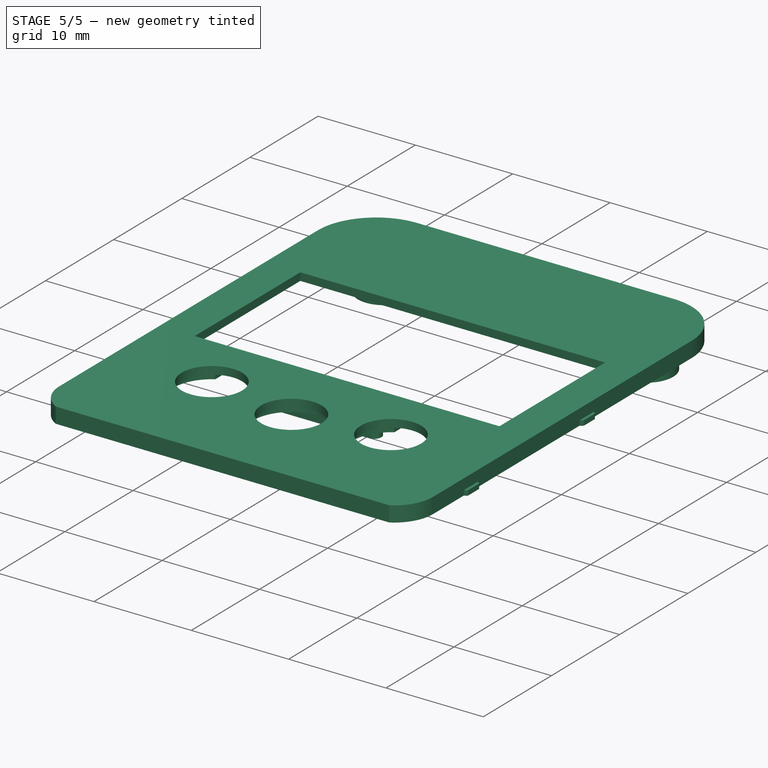
[diagram: stage 5 of 5 — iso view after this stage's code; geometry added in this stage tinted green]
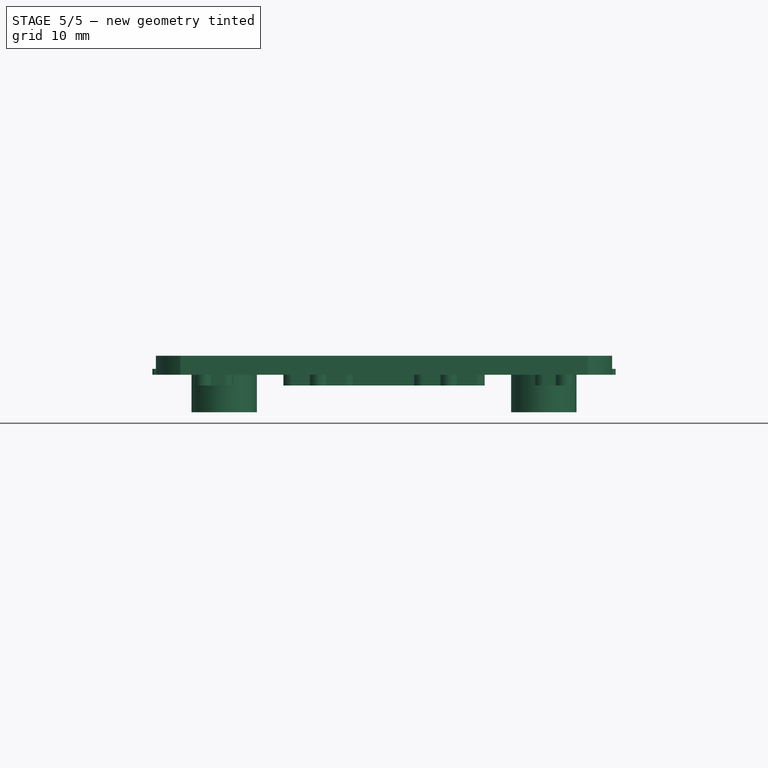
[diagram: stage 5 of 5 — front view after this stage's code; geometry added in this stage tinted green]
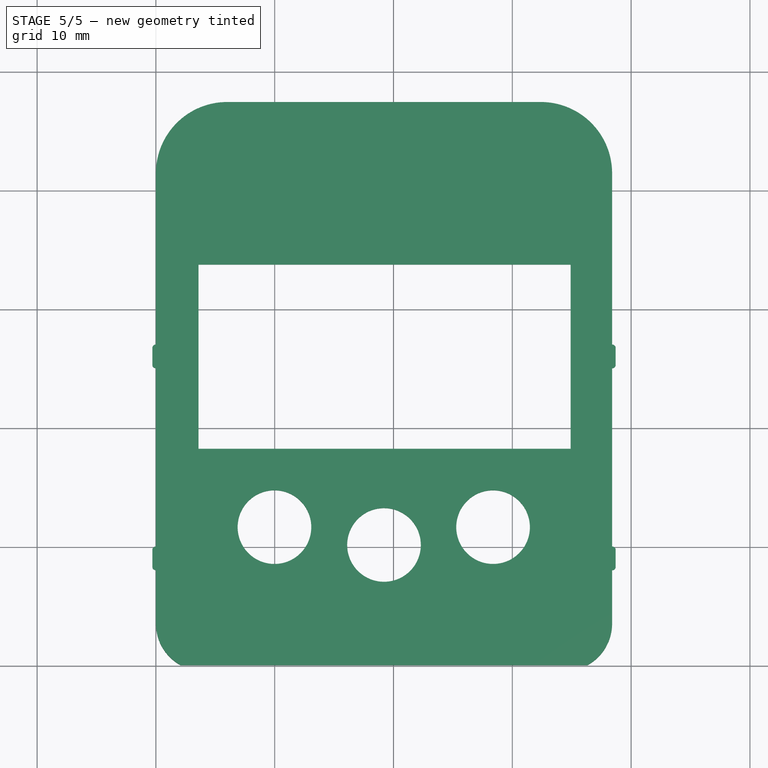
[diagram: stage 5 of 5 — top view after this stage's code; geometry added in this stage tinted green]
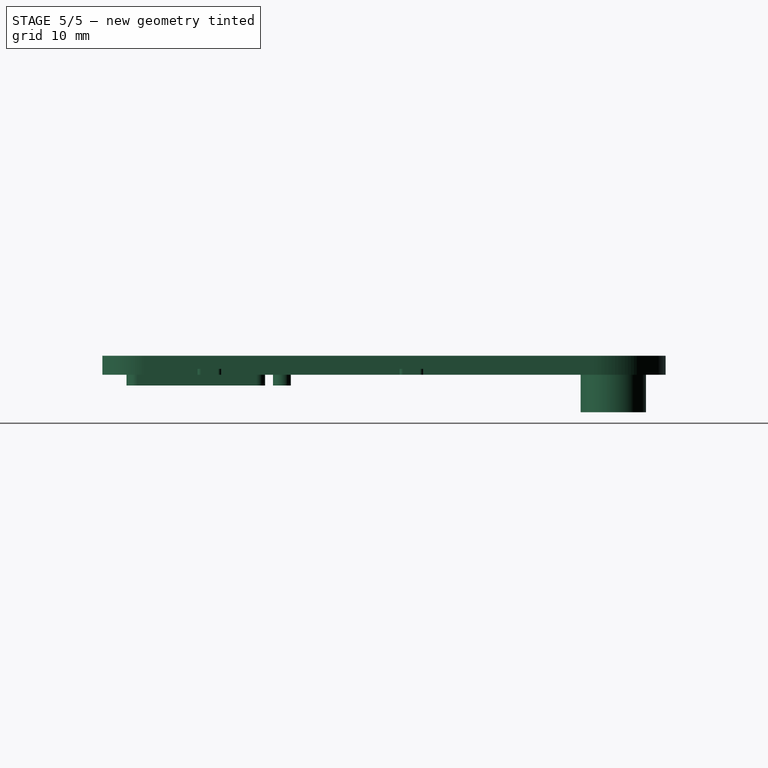
[diagram: stage 5 of 5 — right view after this stage's code; geometry added in this stage tinted green]
FEATURE [Part::Sweep] Sweep001
  Frenet = false
  Sections = -> [Circle001]
  Solid = true
  Spine = -> Helix001
  Transition = 1
FEATURE [Part::Cut] Cut
  Base = -> Pad004
  Tool = -> Sweep
FEATURE [Part::Cut] Cut001  label="Thread"
  Base = -> Cut
  Tool = -> Sweep001
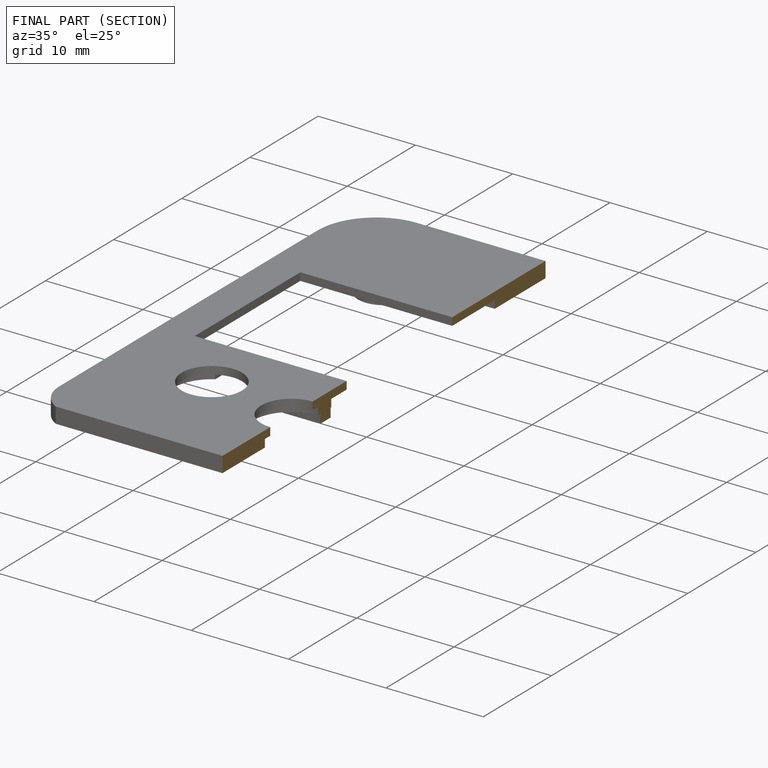
[diagram: finished part — half-section view (interior)]
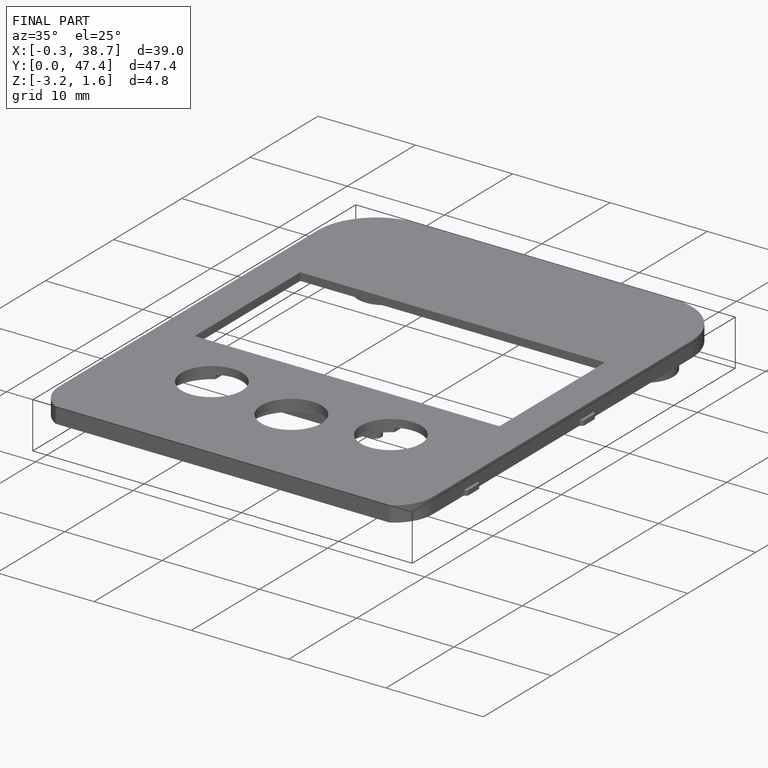
[diagram: finished part — iso view with bounding-box wireframe]
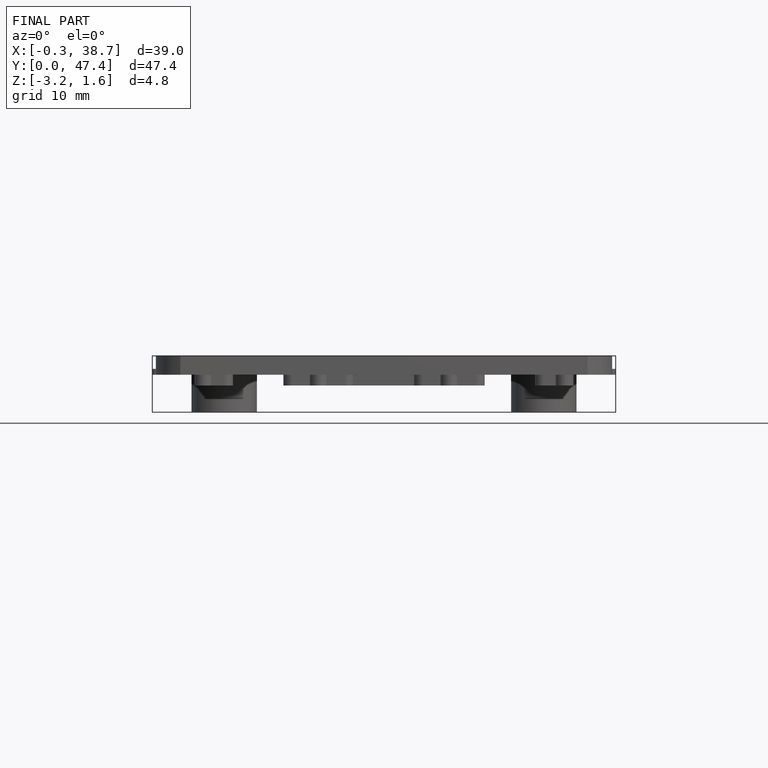
[diagram: finished part — front view with bounding-box wireframe]
